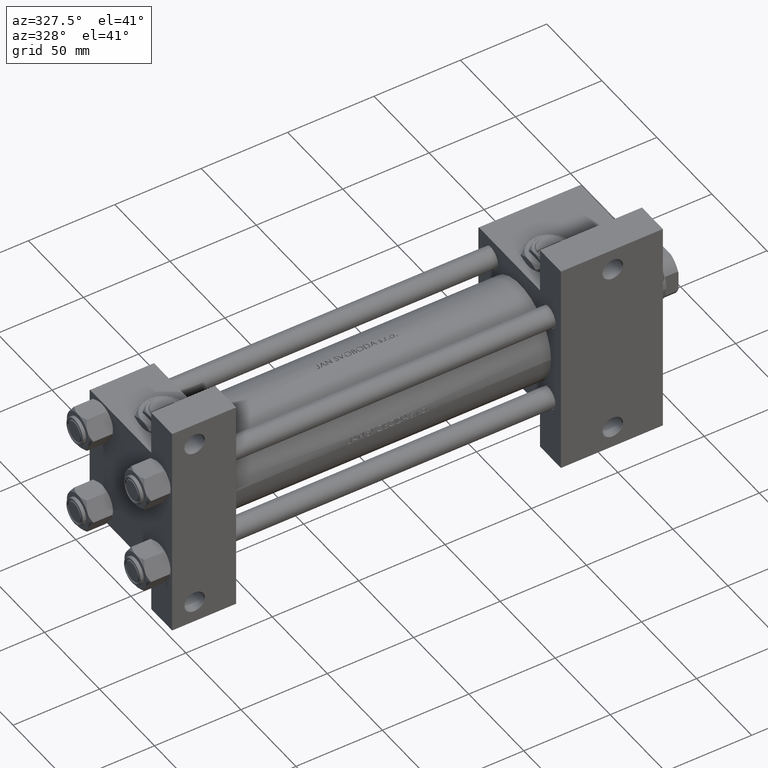
[diagram: clean part render]
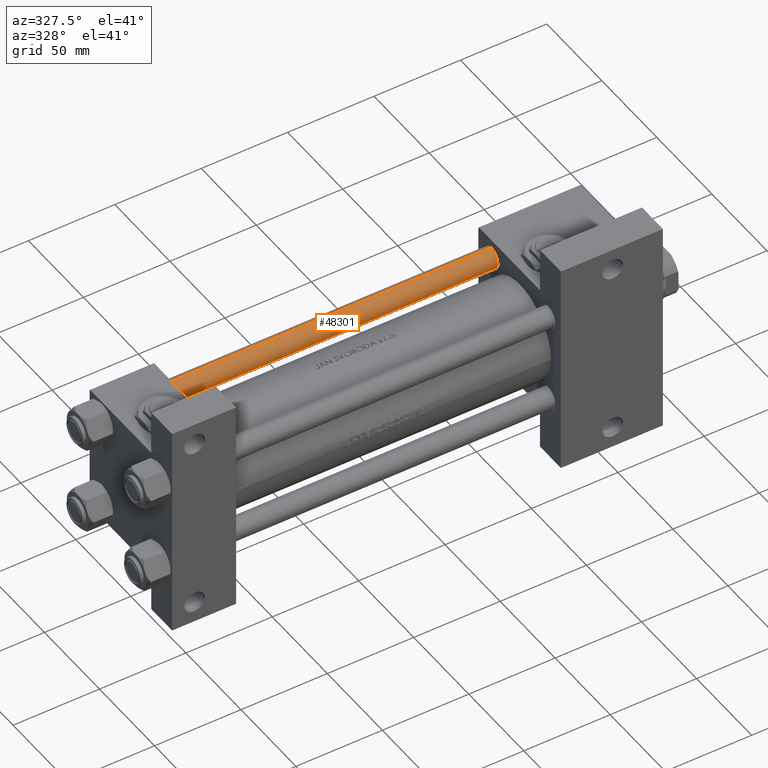
[diagram: same view with one face highlighted and labeled with its STEP entity id]
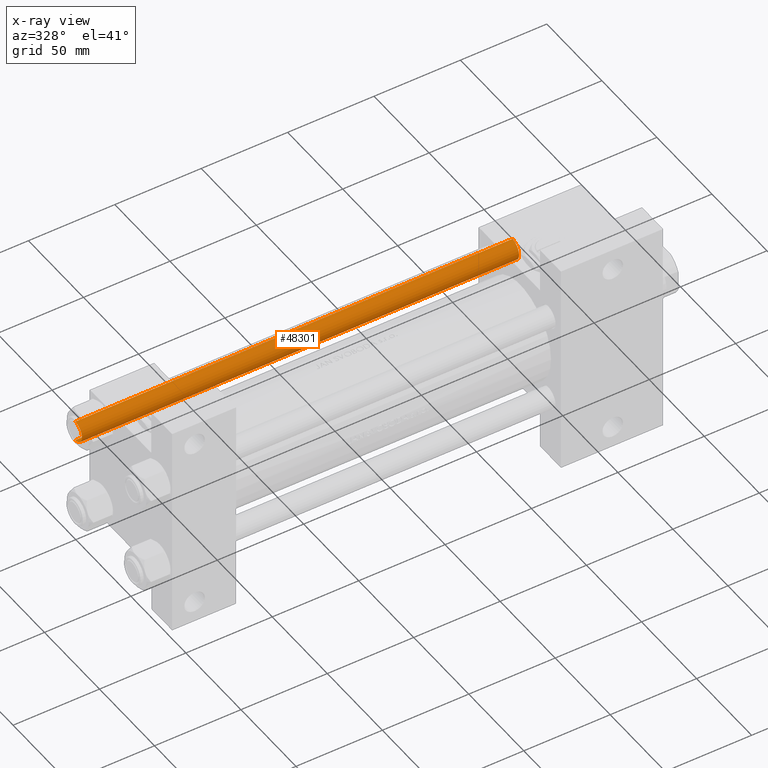
[diagram: x-ray of the same camera — body ghosted, the highlighted face saturated]
A machine part, auxiliary view. The second image highlights one B-rep face of the part: STEP entity #48301.
The next image is the same camera in x-ray: the body ghosted, the highlighted face saturated — about 0% of this face is hidden behind the body in this view.
In plain terms, the highlighted cylindrical surface (edge-blend (fillet) strip) has radius 6 mm, axis along (-1, -0, -0).
Its self-contained STEP definition (entity closure, byte-faithful):
#395 = CARTESIAN_POINT ( 'NONE',  ( -6.000000000000000888, 0.000000000000000000, 0.5000000000000004441 ) ) ;
#2207 = FACE_OUTER_BOUND ( 'NONE', #17614, .T. ) ;
#3734 = EDGE_CURVE ( 'NONE', #8001, #40917, #11986, .T. ) ;
#4556 = ORIENTED_EDGE ( 'NONE', *, *, #22596, .T. ) ;
#4828 = VECTOR ( 'NONE', #8210, 1000.000000000000000 ) ;
#6047 = AXIS2_PLACEMENT_3D ( 'NONE', #39047, #47061, #12719 ) ;
#7721 = CARTESIAN_POINT ( 'NONE',  ( -6.000000000000000888, 0.000000000000000000, 254.0000000000000000 ) ) ;
#7880 = VERTEX_POINT ( 'NONE', #9507 ) ;
#8001 = VERTEX_POINT ( 'NONE', #26264 ) ;
#8210 = DIRECTION ( 'NONE',  ( -0.000000000000000000, -0.000000000000000000, -1.000000000000000000 ) ) ;
#9507 = CARTESIAN_POINT ( 'NONE',  ( 6.000000000000000888, 7.347880794884120722E-16, 0.5000000000000004441 ) ) ;
#9896 = CARTESIAN_POINT ( 'NONE',  ( 0.000000000000000000, 0.000000000000000000, 253.5000000000000568 ) ) ;
#11986 = LINE ( 'NONE', #7721, #4828 ) ;
#12719 = DIRECTION ( 'NONE',  ( 1.000000000000000000, 0.000000000000000000, 0.000000000000000000 ) ) ;
#13667 = DIRECTION ( 'NONE',  ( 1.000000000000000000, 0.000000000000000000, 0.000000000000000000 ) ) ;
#13992 = DIRECTION ( 'NONE',  ( -0.000000000000000000, -0.000000000000000000, -1.000000000000000000 ) ) ;
#15612 = VECTOR ( 'NONE', #17565, 1000.000000000000000 ) ;
#16234 = ORIENTED_EDGE ( 'NONE', *, *, #19943, .T. ) ;
#17565 = DIRECTION ( 'NONE',  ( -0.000000000000000000, -0.000000000000000000, -1.000000000000000000 ) ) ;
#17614 = EDGE_LOOP ( 'NONE', ( #45033, #4556, #24804, #16234 ) ) ;
#19943 = EDGE_CURVE ( 'NONE', #40917, #7880, #33302, .T. ) ;
#21271 = CYLINDRICAL_SURFACE ( 'NONE', #33470, 6.000000000000000888 ) ;
#22160 = CIRCLE ( 'NONE', #36599, 6.000000000000000888 ) ;
#22596 = EDGE_CURVE ( 'NONE', #43015, #8001, #22160, .T. ) ;
#24804 = ORIENTED_EDGE ( 'NONE', *, *, #3734, .T. ) ;
#24925 = DIRECTION ( 'NONE',  ( 0.000000000000000000, 0.000000000000000000, -1.000000000000000000 ) ) ;
#26042 = CARTESIAN_POINT ( 'NONE',  ( 6.000000000000000888, 7.347880794884120722E-16, 254.0000000000000000 ) ) ;
#26264 = CARTESIAN_POINT ( 'NONE',  ( -6.000000000000000888, 0.000000000000000000, 253.5000000000000568 ) ) ;
#30078 = LINE ( 'NONE', #26042, #15612 ) ;
#33302 = CIRCLE ( 'NONE', #6047, 6.000000000000000888 ) ;
#33470 = AXIS2_PLACEMENT_3D ( 'NONE', #37314, #13992, #41323 ) ;
#36599 = AXIS2_PLACEMENT_3D ( 'NONE', #9896, #24925, #13667 ) ;
#37314 = CARTESIAN_POINT ( 'NONE',  ( 0.000000000000000000, 0.000000000000000000, 254.0000000000000000 ) ) ;
#39047 = CARTESIAN_POINT ( 'NONE',  ( 0.000000000000000000, 0.000000000000000000, 0.5000000000000004441 ) ) ;
#40769 = EDGE_CURVE ( 'NONE', #43015, #7880, #30078, .T. ) ;
#40917 = VERTEX_POINT ( 'NONE', #395 ) ;
#41323 = DIRECTION ( 'NONE',  ( -1.000000000000000000, 0.000000000000000000, 0.000000000000000000 ) ) ;
#43015 = VERTEX_POINT ( 'NONE', #44654 ) ;
#44654 = CARTESIAN_POINT ( 'NONE',  ( 6.000000000000000888, 7.347880794884120722E-16, 253.5000000000000568 ) ) ;
#45033 = ORIENTED_EDGE ( 'NONE', *, *, #40769, .F. ) ;
#47061 = DIRECTION ( 'NONE',  ( -0.000000000000000000, -0.000000000000000000, 1.000000000000000000 ) ) ;
#48301 = ADVANCED_FACE ( 'NONE', ( #2207 ), #21271, .T. ) ;